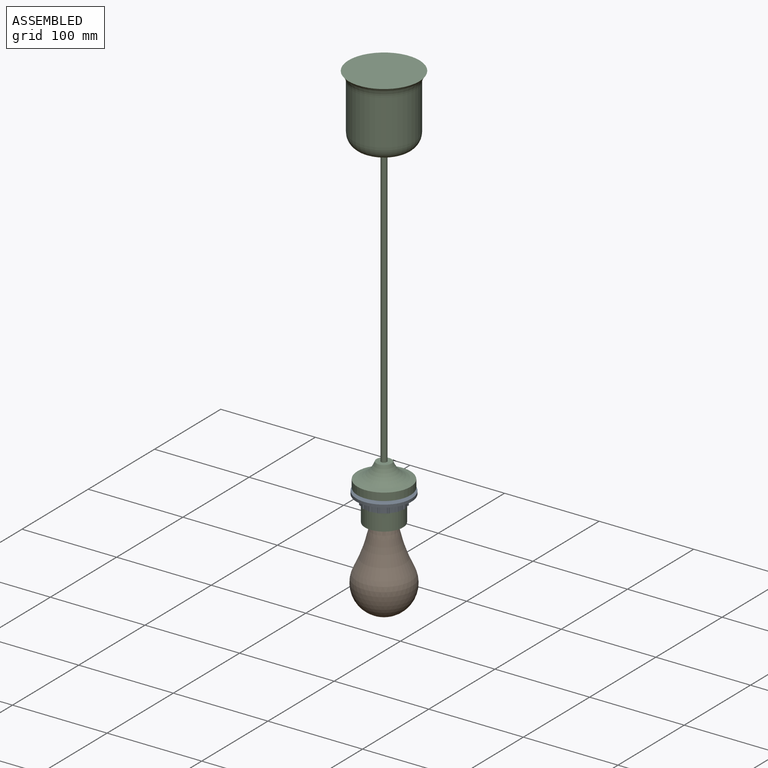
[diagram: assembled view]
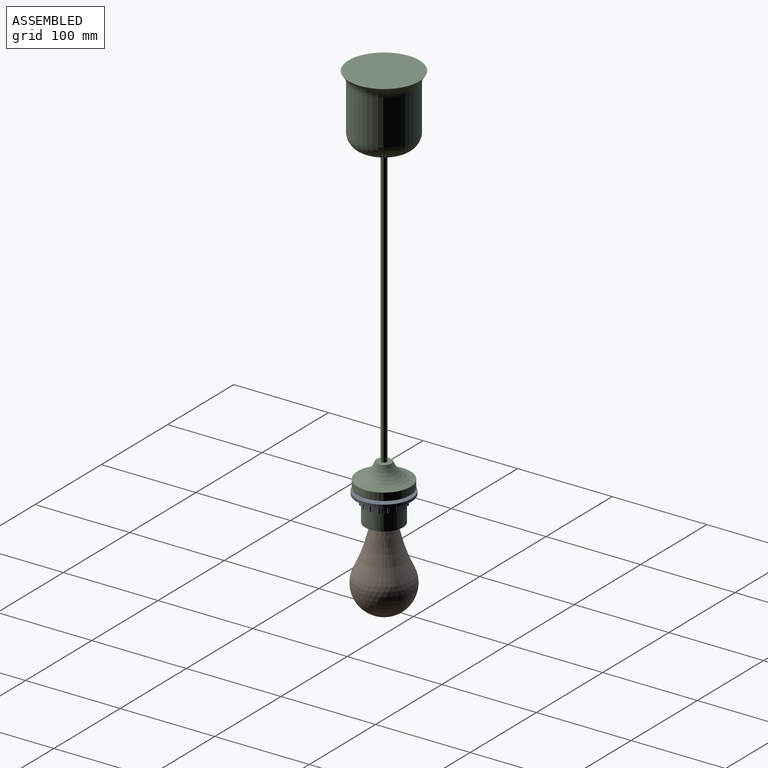
[diagram: assembled view, second angle]
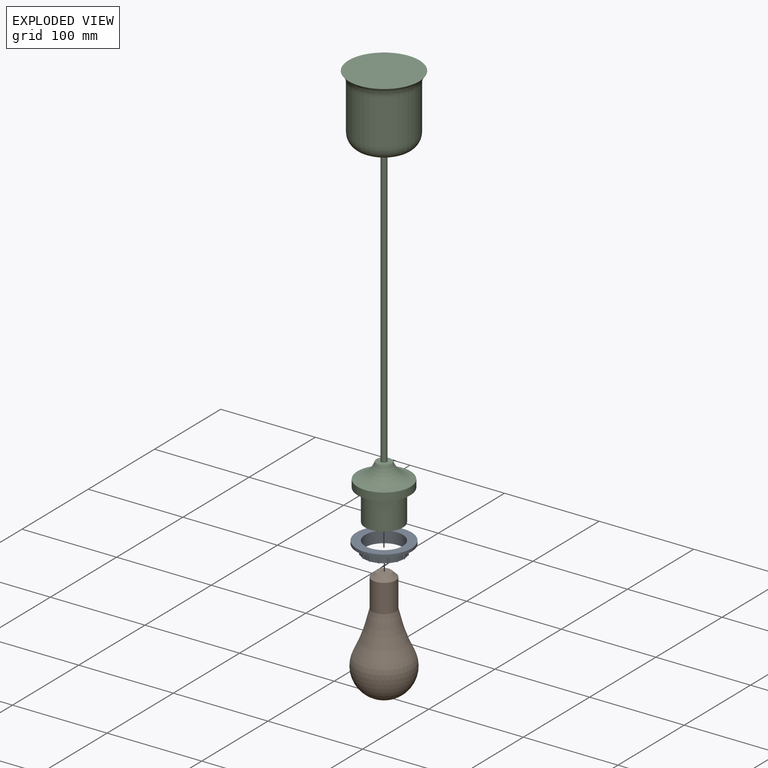
[diagram: exploded view]
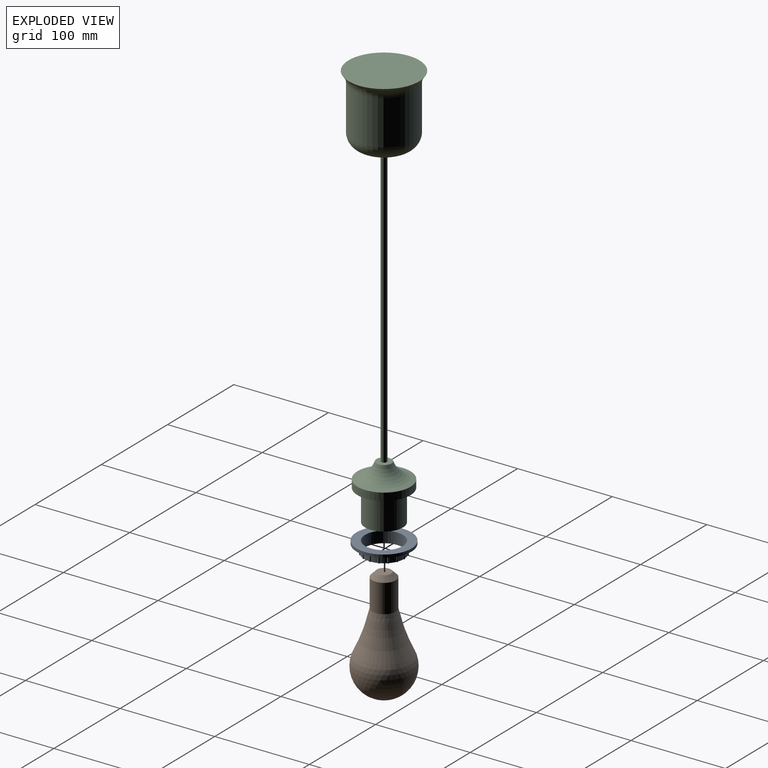
[diagram: exploded view, second angle]
ASSEMBLY  parts=3 mates=4
PART A: 37 faces, bbox 58.1x58.1x12 mm
  f0: cylinder r=21.25mm len=9mm, axis (0,0,-1), area 57.6mm2, adj f19,f20,f21,f36
  f1: cylinder r=21.25mm len=9mm, axis (0,0,-1), area 57.6mm2, adj f19,f20,f35,f36
  f2: cylinder r=21.25mm len=9mm, axis (0,0,-1), area 57.6mm2, adj f19,f20,f34,f35
  f3: cylinder r=21.25mm len=9mm, axis (0,0,-1), area 57.6mm2, adj f19,f20,f33,f34
  f4: cylinder r=21.25mm len=9mm, axis (0,0,-1), area 57.6mm2, adj f19,f20,f32,f33
  f5: cylinder r=21.25mm len=9mm, axis (0,0,-1), area 57.6mm2, adj f19,f20,f31,f32
  f6: cylinder r=21.25mm len=9mm, axis (0,0,-1), area 57.6mm2, adj f19,f20,f30,f31
  f7: cylinder r=21.25mm len=9mm, axis (0,0,-1), area 57.6mm2, adj f19,f20,f29,f30
  f8: cylinder r=21.25mm len=9mm, axis (0,0,-1), area 57.6mm2, adj f19,f20,f28,f29
  f9: cylinder r=21.25mm len=9mm, axis (0,0,-1), area 57.6mm2, adj f19,f20,f27,f28
  f10: cylinder r=21.25mm len=9mm, axis (0,0,-1), area 57.6mm2, adj f19,f20,f26,f27
  f11: cylinder r=21.25mm len=9mm, axis (0,0,-1), area 57.6mm2, adj f19,f20,f25,f26
  f12: cylinder r=21.25mm len=9mm, axis (0,0,-1), area 57.6mm2, adj f19,f20,f24,f25
  f13: cylinder r=21.25mm len=9mm, axis (0,0,-1), area 57.6mm2, adj f19,f20,f23,f24
  f14: cylinder r=21.25mm len=9mm, axis (0,0,-1), area 57.6mm2, adj f19,f20,f22,f23
  f15: cylinder r=21.25mm len=9mm, axis (0,0,-1), area 57.6mm2, adj f19,f20,f21,f22
  f16: cylinder r=20mm len=40mm, axis (0,0,-1), area 1508mm2, adj f17,f20
  f17: plane 58.1x58.1mm, normal (0,0,-1), area 1394.8mm2, adj f16,f18
  f18: cylinder r=29.05mm len=58.1mm, axis (0,0,-1), area 547.6mm2, adj f17,f19
  f19: plane 58.1x58.1mm, normal (0,0,1), area 1215.3mm2, adj f0,f1,f2,f3,f4,f5,f6,f7
  f20: plane 44x44mm, normal (0,0,1), area 179.4mm2, adj f0,f1,f2,f3,f4,f5,f6,f7
  f21: cylinder r=1mm len=9mm, axis (0,0,-1), area 24.1mm2, adj f0,f15,f19,f20
  f22: cylinder r=1mm len=9mm, axis (0,0,-1), area 24.1mm2, adj f14,f15,f19,f20
  f23: cylinder r=1mm len=9mm, axis (0,0,-1), area 24.1mm2, adj f13,f14,f19,f20
  f24: cylinder r=1mm len=9mm, axis (0,0,-1), area 24.1mm2, adj f12,f13,f19,f20
  f25: cylinder r=1mm len=9mm, axis (0,0,-1), area 24.1mm2, adj f11,f12,f19,f20
  f26: cylinder r=1mm len=9mm, axis (0,0,-1), area 24.1mm2, adj f10,f11,f19,f20
  f27: cylinder r=1mm len=9mm, axis (0,0,-1), area 24.1mm2, adj f9,f10,f19,f20
  f28: cylinder r=1mm len=9mm, axis (0,0,-1), area 24.1mm2, adj f8,f9,f19,f20
  f29: cylinder r=1mm len=9mm, axis (0,0,-1), area 24.1mm2, adj f7,f8,f19,f20
  f30: cylinder r=1mm len=9mm, axis (0,0,-1), area 24.1mm2, adj f6,f7,f19,f20
  f31: cylinder r=1mm len=9mm, axis (0,0,-1), area 24.1mm2, adj f5,f6,f19,f20
  f32: cylinder r=1mm len=9mm, axis (0,0,-1), area 24.1mm2, adj f4,f5,f19,f20
  f33: cylinder r=1mm len=9mm, axis (0,0,-1), area 24.1mm2, adj f3,f4,f19,f20
  f34: cylinder r=1mm len=9mm, axis (0,0,-1), area 24.1mm2, adj f2,f3,f19,f20
  f35: cylinder r=1mm len=9mm, axis (0,0,-1), area 24.1mm2, adj f1,f2,f19,f20
  f36: cylinder r=1mm len=9mm, axis (0,0,-1), area 24.1mm2, adj f0,f1,f19,f20
PART B: 6 faces, bbox 117.4x117.4x120 mm
  f0: plane 15x15mm, normal (0,0,1), area 176.7mm2, adj f5
  f1: sphere r=30mm, area 8200.2mm2, adj f2
  f2: torus R=160.73mm, axis (0,0,-1), area 4499.5mm2, adj f1,f3
  f3: cone r=12.5mm half-angle=15deg, axis (0,0,-1), area 706.3mm2, adj f2,f4
  f4: cylinder r=12.5mm len=30mm, axis (0,0,-1), area 2356.2mm2, adj f3,f5
  f5: cone r=7.5mm half-angle=45deg, axis (0,0,-1), area 444.3mm2, adj f0,f4
PART C: 14 faces, bbox 103.9x103.9x435.3 mm
  f0: plane 25x25mm, normal (0,0,-1), area 490.9mm2, adj f1
  f1: cylinder r=12.5mm len=32mm, axis (0,0,1), area 2513.3mm2, adj f0,f2
  f2: plane 40x40mm, normal (0,0,-1), area 765.8mm2, adj f1,f3
  f3: cylinder r=20mm len=40mm, axis (0,0,1), area 4146.9mm2, adj f2,f4
  f4: plane 56x56mm, normal (0,0,-1), area 1206.4mm2, adj f3,f5
  f5: cylinder r=28mm len=56mm, axis (0,0,1), area 1407.4mm2, adj f4,f6
  f6: torus R=31.78mm, axis (0,0,1), area 2847.8mm2, adj f5,f7
  f7: plane 16x16mm, normal (0,0,1), area 172.8mm2, adj f6,f8
  f8: cylinder r=3mm len=300mm, axis (0,0,1), area 5654.9mm2, adj f7,f9
  f9: plane 36x36mm, normal (0,0,-1), area 989.6mm2, adj f8,f10
  f10: torus R=18mm, axis (0,0,1), area 4078.5mm2, adj f9,f11
  f11: cylinder r=33mm len=66mm, axis (0,0,1), area 9804.9mm2, adj f10,f12
  f12: torus R=48mm, axis (0,0,1), area 2588.7mm2, adj f11,f13
  f13: plane 75x75mm, normal (0,0,1), area 4417.9mm2, adj f12
PLACE A rot(axis=(1,0,0),180deg) t=(-135.94,83.77,-42.12)mm
PLACE B rot(axis=(0,0,-1),90deg) t=(-135.94,83.77,-40.12)mm
PLACE C t=(-135.94,83.77,-72.12)mm fixed
MATE planar C.f12 <-> B.f5  axis (0,0,-1) through (-135.94,83.77,-40.12)mm
MATE planar C.f10 <-> A.f0  axis (0,0,-1) through (-135.94,83.77,-39.12)mm
MATE cylindrical A.f0 <-> C.f1  axis (0,0,1) through (-135.94,83.77,-48.12)mm
MATE cylindrical B.f5 <-> C.f1  axis (0,0,-1) through (-135.94,83.77,-60.12)mm
